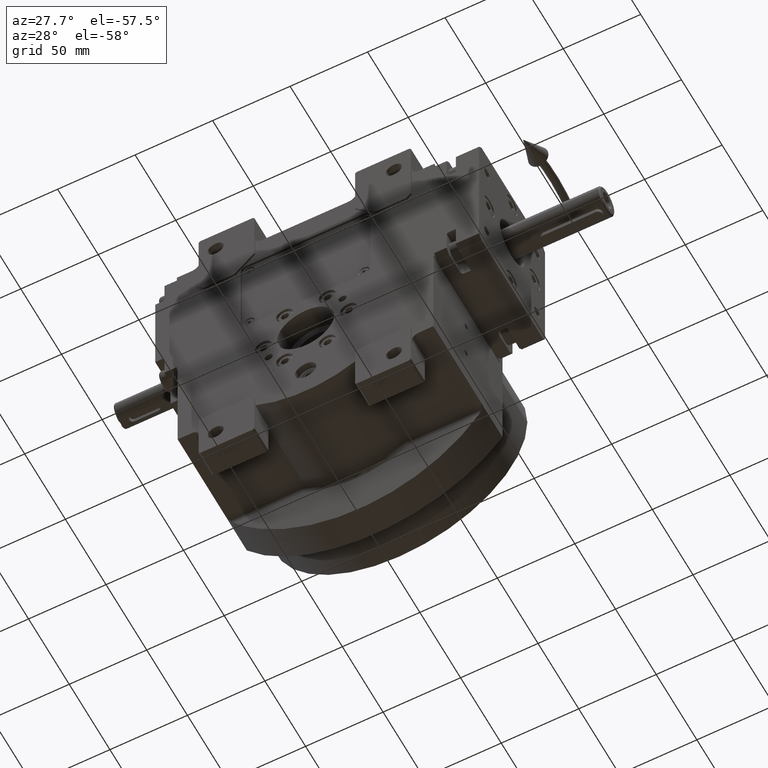
[diagram: clean part render]
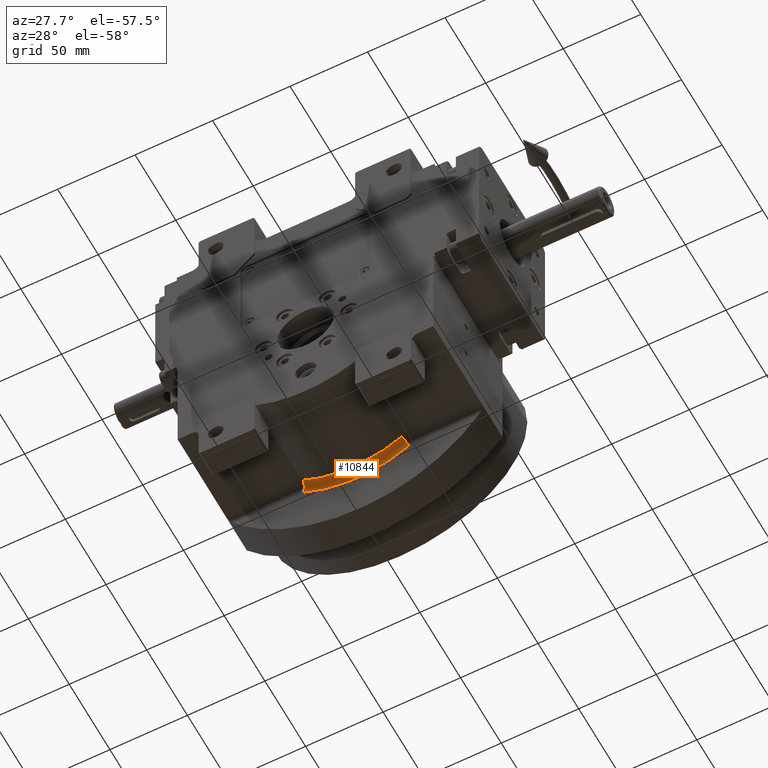
[diagram: same view with one face highlighted and labeled with its STEP entity id]
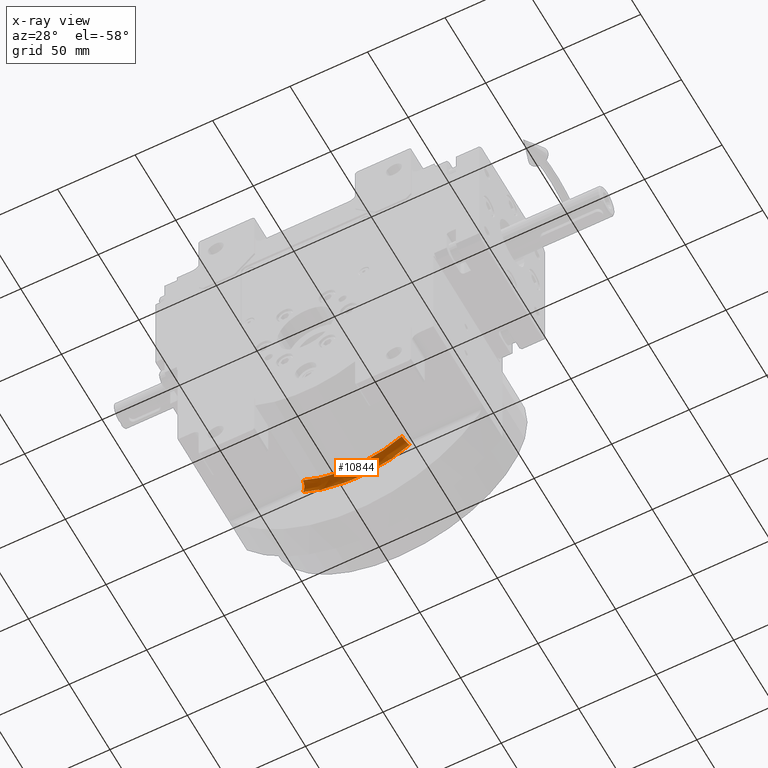
[diagram: x-ray of the same camera — body ghosted, the highlighted face saturated]
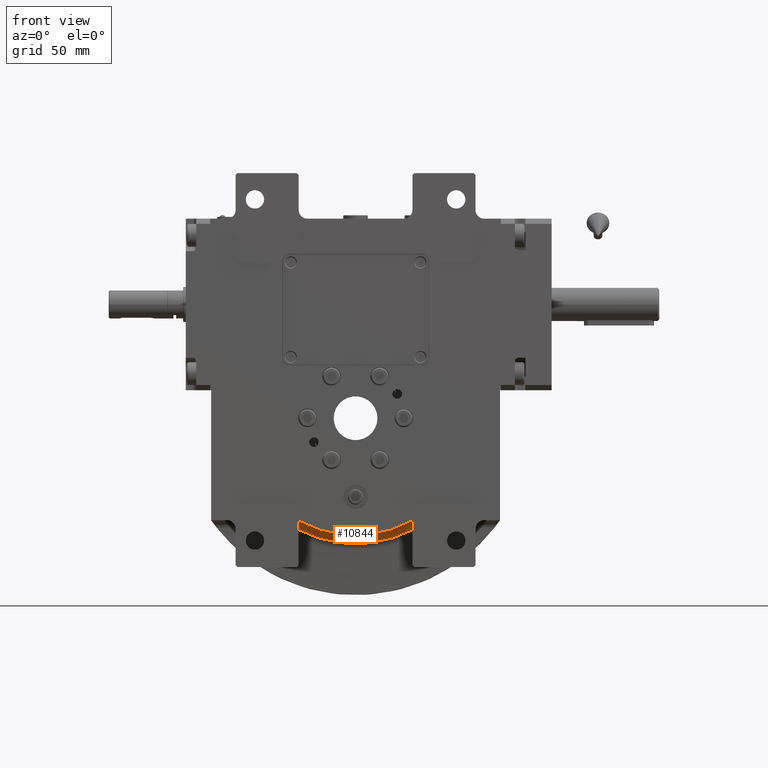
[diagram: same view with one face highlighted and labeled with its STEP entity id]
A machine part, auxiliary view. The second image highlights one B-rep face of the part: STEP entity #10844.
The next image is the same camera in x-ray: the body ghosted, the highlighted face saturated — about 0% of this face is hidden behind the body in this view.
A second angle (front view) of the same face is appended — the face is thin or edge-on in the first view.
In plain terms, the highlighted face is a freeform B-spline surface patch.
Its self-contained STEP definition (entity closure, byte-faithful):
#314 = CARTESIAN_POINT ( 'NONE',  ( -23.47284083894535911, 22.32516390193326572, -67.69614973545274950 ) ) ;
#453 = CARTESIAN_POINT ( 'NONE',  ( 5.312359062531579745, 22.67382314555505118, -71.68461723454409196 ) ) ;
#896 = B_SPLINE_SURFACE_WITH_KNOTS ( 'NONE', 3, 3, ( 
 ( #29865, #42346, #63230, #13002, #69091, #18856, #41259, #59560, #15914, #3799 ),
 ( #20303, #71256, #70891, #9332, #48554, #3447, #32050, #54062, #43428, #26162 ),
 ( #54421, #14823, #37198, #70536, #48197, #16280, #44147, #32417, #66490, #43057 ),
 ( #43785, #55133, #21743, #31693, #26520, #20657, #4883, #8961, #65755, #21032 ),
 ( #65398, #4165, #15197, #37561, #42696, #65024, #59190, #31330, #54779, #53707 ),
 ( #25813, #66117, #27231, #59913, #9690, #48912, #15554, #49627, #37925, #60277 ),
 ( #10056, #71979, #4524, #26881, #49272, #71617, #21389, #38290, #60647, #10415 ),
 ( #32772, #51444, #45937, #67565, #453, #67194, #11841, #22455, #16620, #1193 ) ),
 .UNSPECIFIED., .F., .F., .F.,
 ( 4, 2, 2, 4 ),
 ( 4, 1, 1, 1, 1, 1, 1, 4 ),
 ( -5.349090900439799999E-08, 0.4980493630235890423, 0.9960987795380870091, 1.494148196052583977 ),
 ( 0.01506064934118959975, 0.1415550613721850148, 0.2844104620619999912, 0.4280550938335154765, 0.5719436702722410226, 0.7155885140798790012, 0.8584443337168500276, 0.9843486904440090779 ),
 .UNSPECIFIED. ) ;
#1193 = CARTESIAN_POINT ( 'NONE',  ( -34.37448426115155087, 21.89931358665204897, -62.82870481713079158 ) ) ;
#2100 = CARTESIAN_POINT ( 'NONE',  ( 34.37448425976209876, 21.89931667216864852, -62.82870454466170429 ) ) ;
#2221 = CARTESIAN_POINT ( 'NONE',  ( -34.37448426114839606, 21.89931762037159757, -62.82870446426660749 ) ) ;
#2270 = CARTESIAN_POINT ( 'NONE',  ( 31.98743443817719623, 16.91834202203235193, -58.87106939620260704 ) ) ;
#3447 = CARTESIAN_POINT ( 'NONE',  ( -4.985606449715559663, 18.52258407054160116, -67.05950363468579667 ) ) ;
#3799 = CARTESIAN_POINT ( 'NONE',  ( -31.98734872618995340, 16.91834067345600090, -58.87108237431030489 ) ) ;
#4061 = CARTESIAN_POINT ( 'NONE',  ( 33.43345245199208904, 21.34838968287522221, -61.14495112640866381 ) ) ;
#4165 = CARTESIAN_POINT ( 'NONE',  ( 30.26533976592959974, 20.78888421055715341, -61.61440901042910667 ) ) ;
#4524 = CARTESIAN_POINT ( 'NONE',  ( 25.31111222606615030, 22.21174957585860099, -66.35048536335919778 ) ) ;
#4883 = CARTESIAN_POINT ( 'NONE',  ( -15.05407910445714847, 20.67200015654930212, -66.57285659245719955 ) ) ;
#5097 = CARTESIAN_POINT ( 'NONE',  ( 29.04086476617816714, 22.13437532320985923, -65.51542630187469740 ) ) ;
#5201 = VERTEX_POINT ( 'NONE', #53385 ) ;
#5519 = CARTESIAN_POINT ( 'NONE',  ( 34.22504648665845650, 21.87552267231701464, -62.55672696553510548 ) ) ;
#7492 = EDGE_LOOP ( 'NONE', ( #69882, #39685, #20431, #30978 ) ) ;
#8153 = CARTESIAN_POINT ( 'NONE',  ( 32.02311471396220810, 17.52935285823654965, -58.88333062413673957 ) ) ;
#8961 = CARTESIAN_POINT ( 'NONE',  ( -24.29570833834564780, 20.41175221617285018, -63.75167992997710087 ) ) ;
#9332 = CARTESIAN_POINT ( 'NONE',  ( 14.74899353304840055, 18.38600836025720042, -65.60516387452921094 ) ) ;
#9602 = CARTESIAN_POINT ( 'NONE',  ( 33.73119429049442175, 21.61395435852485747, -61.66965452720889118 ) ) ;
#9690 = CARTESIAN_POINT ( 'NONE',  ( 5.189664148516230924, 22.33884502181484777, -70.04835568725430051 ) ) ;
#10056 = CARTESIAN_POINT ( 'NONE',  ( 33.97495329477499837, 21.83547761356124894, -62.09897339379189418 ) ) ;
#10415 = CARTESIAN_POINT ( 'NONE',  ( -33.97495223888379456, 21.83547720417900351, -62.09897148611660356 ) ) ;
#10844 = ADVANCED_FACE ( 'NONE', ( #53334 ), #896, .F. ) ;
#11036 = CARTESIAN_POINT ( 'NONE',  ( 32.69782428689194376, 20.20639863448462492, -59.89099290944819387 ) ) ;
#11434 = CARTESIAN_POINT ( 'NONE',  ( -31.98743979880390498, 16.91834305889650025, -58.87107689861610282 ) ) ;
#11841 = CARTESIAN_POINT ( 'NONE',  ( -15.88574857046580036, 22.53542943301765078, -70.10167552148800496 ) ) ;
#13002 = CARTESIAN_POINT ( 'NONE',  ( 14.73316211460674019, 17.55174771232135100, -65.60818881742689257 ) ) ;
#13231 = CARTESIAN_POINT ( 'NONE',  ( -32.58211291903631945, 20.03721089980311731, -59.69284975760209733 ) ) ;
#14734 = CARTESIAN_POINT ( 'NONE',  ( 32.16378153835762532, 18.48003092852795604, -59.05913719526966332 ) ) ;
#14823 = CARTESIAN_POINT ( 'NONE',  ( 29.58978951225625309, 18.70273482888475058, -60.41468680097980126 ) ) ;
#15197 = CARTESIAN_POINT ( 'NONE',  ( 24.49311927717645077, 21.03408714449059858, -64.29591374703228723 ) ) ;
#15554 = CARTESIAN_POINT ( 'NONE',  ( -15.51894356669414954, 22.20050738530104795, -68.50238787699559850 ) ) ;
#15752 = CARTESIAN_POINT ( 'NONE',  ( -14.83574960765554707, 22.53394690383062127, -70.08255036706712815 ) ) ;
#15815 = CARTESIAN_POINT ( 'NONE',  ( 32.74046267663956655, 20.29774043094684899, -59.96149064735983814 ) ) ;
#15914 = CARTESIAN_POINT ( 'NONE',  ( -29.45257529162520171, 17.04781258493639839, -60.24818429381119955 ) ) ;
#16280 = CARTESIAN_POINT ( 'NONE',  ( -5.006512162622009932, 19.34373233567044892, -67.26863427106378879 ) ) ;
#16620 = CARTESIAN_POINT ( 'NONE',  ( -31.65484861374630299, 22.02945599755280170, -64.31643460213680896 ) ) ;
#16843 = CARTESIAN_POINT ( 'NONE',  ( 20.63116238637816835, 22.40509573647655372, -68.60977478493825288 ) ) ;
#18779 = CARTESIAN_POINT ( 'NONE',  ( 32.21505596508978897, 18.72422514810597960, -59.13217146334259411 ) ) ;
#18856 = CARTESIAN_POINT ( 'NONE',  ( -4.980135469638319989, 17.68818488111210030, -67.05937529392119245 ) ) ;
#19873 = CARTESIAN_POINT ( 'NONE',  ( 32.10350489515772665, 18.14000914207347748, -58.97787707114111555 ) ) ;
#20303 = CARTESIAN_POINT ( 'NONE',  ( 32.01794642272439262, 17.75200676098285157, -58.85445954576479721 ) ) ;
#20363 = B_SPLINE_CURVE_WITH_KNOTS ( 'NONE', 3,
 ( #43383, #37880, #60230, #47424, #60590, #61304, #56522, #66073, #33086, #11434 ),
 .UNSPECIFIED., .F., .F.,
 ( 4, 1, 1, 1, 1, 1, 1, 4 ),
 ( 0.000000000000000000, 0.1305023962609451471, 0.2778841802425977558, 0.4260802021475848522, 0.5745278981235040217, 0.7227241387829929087, 0.8701063549861712820, 1.000000000000000000 ),
 .UNSPECIFIED. ) ;
#20431 = ORIENTED_EDGE ( 'NONE', *, *, #44861, .F. ) ;
#20657 = CARTESIAN_POINT ( 'NONE',  ( -5.075381098711249983, 20.80979854058070089, -68.06676717787489395 ) ) ;
#21032 = CARTESIAN_POINT ( 'NONE',  ( -32.58211292965309980, 20.03721089926845167, -59.69284975180789843 ) ) ;
#21243 = CARTESIAN_POINT ( 'NONE',  ( -11.90248989745663444, 22.58241322724574474, -70.63652297862456919 ) ) ;
#21299 = CARTESIAN_POINT ( 'NONE',  ( 33.55919131906695441, 21.47314760397791389, -61.36548467847053701 ) ) ;
#21389 = CARTESIAN_POINT ( 'NONE',  ( -15.70109730716845142, 22.47154757257565194, -69.28735807076829190 ) ) ;
#21656 = CARTESIAN_POINT ( 'NONE',  ( 33.49596927411045044, 21.41148316958645736, -61.25452229406503335 ) ) ;
#21743 = CARTESIAN_POINT ( 'NONE',  ( 24.27018054425809979, 20.41274173681960136, -63.76240717643119638 ) ) ;
#21950 = CARTESIAN_POINT ( 'NONE',  ( -2.989791404646014783, 22.66357855640624308, -71.56424693609983478 ) ) ;
#22008 = CARTESIAN_POINT ( 'NONE',  ( 33.90884330140355729, 21.72980709277304356, -61.98654436986177529 ) ) ;
#22455 = CARTESIAN_POINT ( 'NONE',  ( -25.63569944676440215, 22.27462078963334946, -67.11890327536170275 ) ) ;
#24422 = EDGE_CURVE ( 'NONE', #5201, #31665, #20363, .T. ) ;
#25813 = CARTESIAN_POINT ( 'NONE',  ( 33.58176531939849241, 21.56463036862644600, -61.39902706031460156 ) ) ;
#26162 = CARTESIAN_POINT ( 'NONE',  ( -32.01794543039404317, 17.75200655022460339, -58.85445773622760157 ) ) ;
#26425 = CARTESIAN_POINT ( 'NONE',  ( 33.46693639570202805, 21.38264226011981961, -61.20360356247892497 ) ) ;
#26514 = CARTESIAN_POINT ( 'NONE',  ( -31.98743979880390498, 16.91834305889650025, -58.87107689861610282 ) ) ;
#26520 = CARTESIAN_POINT ( 'NONE',  ( 5.034010421367740129, 20.81008187498295214, -68.06983930150960305 ) ) ;
#26798 = CARTESIAN_POINT ( 'NONE',  ( 33.20812734061839677, 21.08478091162955792, -60.75296467484636764 ) ) ;
#26881 = CARTESIAN_POINT ( 'NONE',  ( 15.65889487797699964, 22.47239232837635114, -69.29690724126749046 ) ) ;
#27231 = CARTESIAN_POINT ( 'NONE',  ( 25.01775090583850059, 21.94079065737765077, -65.60031027760419420 ) ) ;
#27437 = CARTESIAN_POINT ( 'NONE',  ( 31.74721959813282979, 22.02420755821067999, -64.25620298585577927 ) ) ;
#27497 = CARTESIAN_POINT ( 'NONE',  ( 32.48629044923389841, 19.68265260997892696, -59.54728963544215503 ) ) ;
#28169 = CARTESIAN_POINT ( 'NONE',  ( 5.969130634977448224, 22.64734071920593195, -71.37864760761658545 ) ) ;
#29865 = CARTESIAN_POINT ( 'NONE',  ( 31.98734971697150087, 16.91834084366389845, -58.87108418469269822 ) ) ;
#30087 = CARTESIAN_POINT ( 'NONE',  ( -32.14775137455149689, 18.57243314881601393, -59.02158095131412807 ) ) ;
#30978 = ORIENTED_EDGE ( 'NONE', *, *, #24422, .T. ) ;
#31330 = CARTESIAN_POINT ( 'NONE',  ( -24.51887821482065277, 21.03309696621295188, -64.28508042708929793 ) ) ;
#31606 = CARTESIAN_POINT ( 'NONE',  ( 32.21062267453432071, 18.70415746839778848, -59.12576714756355756 ) ) ;
#31665 = VERTEX_POINT ( 'NONE', #26514 ) ;
#31672 = B_SPLINE_CURVE_WITH_KNOTS ( 'NONE', 3,
 ( #2270, #58397, #8153, #52879, #19873, #42263, #14734, #64584, #59473, #31606, #18779, #41170, #35643, #27497, #43345, #55402, #48820, #11036, #59830, #65674, #15815, #37835, #37476, #49189, #54334, #26798, #66391, #71536, #42971, #4061, #26425, #31958, #33391, #21656, #44052, #21299, #54685, #9602, #43696, #38906, #66032, #71166, #22008, #55050, #48461, #49537, #5519, #32690 ),
 .UNSPECIFIED., .F., .F.,
 ( 4, 2, 2, 1, 1, 2, 2, 2, 2, 1, 1, 1, 2, 2, 2, 2, 2, 1, 1, 1, 2, 2, 2, 2, 1, 1, 2, 2, 4 ),
 ( 0.000000000000000000, 0.1249999999999205635, 0.1874999999998815392, 0.2187499999998619438, 0.2343749999998528122, 0.2421874999998485933, 0.2499999999998444022, 0.3749999999997710165, 0.4374999999997347122, 0.4687499999997153388, 0.4843749999997056244, 0.4921874999997002398, 0.4960937499996980748, 0.4999999999996959099, 0.6249999999996843636, 0.6874999999996797007, 0.7187499999996763700, 0.7343749999996745936, 0.7421874999996742606, 0.7460937499996737055, 0.7480468749996734834, 0.7499999999996732614, 0.8124999999997548628, 0.8437499999997970512, 0.8593749999998184785, 0.8671874999998295808, 0.8710937499998353539, 0.8749999999998410161, 1.000000000000000000 ),
 .UNSPECIFIED. ) ;
#31693 = CARTESIAN_POINT ( 'NONE',  ( 15.01361162066794996, 20.67284306709315089, -66.58199389556790493 ) ) ;
#31958 = CARTESIAN_POINT ( 'NONE',  ( 33.48383523637958348, 21.39952481451699740, -61.23323436435543243 ) ) ;
#32050 = CARTESIAN_POINT ( 'NONE',  ( -14.78875358798659789, 18.38516779463245143, -65.59621327763490228 ) ) ;
#32417 = CARTESIAN_POINT ( 'NONE',  ( -23.96890041528294901, 18.94637199954769713, -63.01949236013039268 ) ) ;
#32629 = CARTESIAN_POINT ( 'NONE',  ( 14.83576610642443683, 22.53395076200965974, -70.08259446625528710 ) ) ;
#32690 = CARTESIAN_POINT ( 'NONE',  ( 34.37448425976209876, 21.89931667216864852, -62.82870454466170429 ) ) ;
#32772 = CARTESIAN_POINT ( 'NONE',  ( 34.37448532946400093, 21.89931399913935195, -62.82870674722110493 ) ) ;
#32987 = CARTESIAN_POINT ( 'NONE',  ( 34.37448425976209876, 21.89931667216864852, -62.82870454466170429 ) ) ;
#33086 = CARTESIAN_POINT ( 'NONE',  ( -29.45257542784745652, 17.04781651606748127, -60.24818422784169769 ) ) ;
#33337 = CARTESIAN_POINT ( 'NONE',  ( -34.37448426114839606, 21.89931762037159757, -62.82870446426660749 ) ) ;
#33391 = CARTESIAN_POINT ( 'NONE',  ( 33.49111118290952760, 21.40670698740588307, -61.24599844153117800 ) ) ;
#35594 = CARTESIAN_POINT ( 'NONE',  ( -33.97495222781908808, 21.83547720471467812, -62.09897149216929790 ) ) ;
#35643 = CARTESIAN_POINT ( 'NONE',  ( 32.35433031463118425, 19.28630331395154229, -59.33910833681502339 ) ) ;
#37198 = CARTESIAN_POINT ( 'NONE',  ( 23.94370797182140009, 18.94735996923695254, -63.03005720894730501 ) ) ;
#37476 = CARTESIAN_POINT ( 'NONE',  ( 32.84356451004986610, 20.51291761275329151, -60.13242002078200699 ) ) ;
#37561 = CARTESIAN_POINT ( 'NONE',  ( 15.15200614646964894, 21.29437547240680217, -67.14350210244010952 ) ) ;
#37835 = CARTESIAN_POINT ( 'NONE',  ( 32.74468400485579167, 20.30659213609053992, -59.96848570823783575 ) ) ;
#37880 = CARTESIAN_POINT ( 'NONE',  ( 29.44072205902208239, 17.04842239295195228, -60.25462851536783404 ) ) ;
#37925 = CARTESIAN_POINT ( 'NONE',  ( -30.92465710468345108, 21.69472733084185023, -62.85209919801850020 ) ) ;
#38130 = CARTESIAN_POINT ( 'NONE',  ( -31.74689637493835548, 22.02422287345092755, -64.25637803985283369 ) ) ;
#38290 = CARTESIAN_POINT ( 'NONE',  ( -25.33772548572940053, 22.21075815114509666, -66.33927685919370276 ) ) ;
#38857 = CARTESIAN_POINT ( 'NONE',  ( -29.04105011325574992, 22.13437318037911794, -65.51540180920734713 ) ) ;
#38906 = CARTESIAN_POINT ( 'NONE',  ( 33.82720233730306347, 21.68015116134838749, -61.84060092327543146 ) ) ;
#39216 = CARTESIAN_POINT ( 'NONE',  ( 2.989797780335714528, 22.66357457562292410, -71.56420143553830826 ) ) ;
#39685 = ORIENTED_EDGE ( 'NONE', *, *, #64655, .F. ) ;
#41127 = CARTESIAN_POINT ( 'NONE',  ( -33.58176426494383549, 21.56462997295396988, -61.39902518003657406 ) ) ;
#41170 = CARTESIAN_POINT ( 'NONE',  ( 32.28007184173921473, 19.01449822969751580, -59.22643570895439780 ) ) ;
#41259 = CARTESIAN_POINT ( 'NONE',  ( -14.77288166437734063, 17.55090800214700053, -65.59925740921940474 ) ) ;
#42263 = CARTESIAN_POINT ( 'NONE',  ( 32.14281245953367971, 18.36695712941077119, -59.03041155637551185 ) ) ;
#42346 = CARTESIAN_POINT ( 'NONE',  ( 29.44072192283740108, 17.04841846181794907, -60.25462858127929877 ) ) ;
#42696 = CARTESIAN_POINT ( 'NONE',  ( 5.080498079819370183, 21.43171770608825000, -68.64619728877529781 ) ) ;
#42971 = CARTESIAN_POINT ( 'NONE',  ( 33.40529059927756350, 21.31822588542240382, -61.09572500218396840 ) ) ;
#43057 = CARTESIAN_POINT ( 'NONE',  ( -32.14775138503180330, 18.57243314828215119, -59.02158094560640222 ) ) ;
#43345 = CARTESIAN_POINT ( 'NONE',  ( 32.53370187337065289, 19.81285199359001936, -59.62319584522479943 ) ) ;
#43383 = CARTESIAN_POINT ( 'NONE',  ( 31.98743443817719623, 16.91834202203235193, -58.87106939620260704 ) ) ;
#43428 = CARTESIAN_POINT ( 'NONE',  ( -29.48146737460379896, 17.88159068325219891, -60.23419211705630261 ) ) ;
#43696 = CARTESIAN_POINT ( 'NONE',  ( 33.76859029514489663, 21.64106143382714009, -61.73612088267417874 ) ) ;
#43785 = CARTESIAN_POINT ( 'NONE',  ( 32.58211394110570325, 20.03721122118130182, -59.69285158621150345 ) ) ;
#44052 = CARTESIAN_POINT ( 'NONE',  ( 33.49901502991529156, 21.41446307854819153, -61.25986731557330245 ) ) ;
#44147 = CARTESIAN_POINT ( 'NONE',  ( -14.85041617654067991, 19.20617887655184930, -65.79767106539189570 ) ) ;
#44352 = CARTESIAN_POINT ( 'NONE',  ( -20.63116937147355046, 22.40509959465580891, -68.60981888412888452 ) ) ;
#44861 = EDGE_CURVE ( 'NONE', #5201, #50614, #31672, .T. ) ;
#45937 = CARTESIAN_POINT ( 'NONE',  ( 25.60877324666465071, 22.27561228193904697, -67.13024366902838835 ) ) ;
#46970 = CARTESIAN_POINT ( 'NONE',  ( -31.98743979880390498, 16.91834305889650025, -58.87107689861610282 ) ) ;
#47424 = CARTESIAN_POINT ( 'NONE',  ( 14.73316218924969867, 17.55175164572757396, -65.60818880316627144 ) ) ;
#48197 = CARTESIAN_POINT ( 'NONE',  ( 4.965702433001919935, 19.34401517241849788, -67.27165907835350822 ) ) ;
#48461 = CARTESIAN_POINT ( 'NONE',  ( 33.92535459463461223, 21.73912870223322003, -62.01611895463970825 ) ) ;
#48554 = CARTESIAN_POINT ( 'NONE',  ( 4.944966889311680269, 18.52286662855195232, -67.06251259139111198 ) ) ;
#48820 = CARTESIAN_POINT ( 'NONE',  ( 32.64949430569751598, 20.09837154108942769, -59.81145617187603847 ) ) ;
#48912 = CARTESIAN_POINT ( 'NONE',  ( -5.232313598796380028, 22.33856116847615070, -70.04518290873480169 ) ) ;
#49136 = CARTESIAN_POINT ( 'NONE',  ( 23.47303169947996793, 22.32516175910221179, -67.69612524278177546 ) ) ;
#49189 = CARTESIAN_POINT ( 'NONE',  ( 32.95368136968663464, 20.71200517943965025, -60.31722614015441764 ) ) ;
#49272 = CARTESIAN_POINT ( 'NONE',  ( 5.250608913103330444, 22.60993058936840328, -70.85188868654628891 ) ) ;
#49537 = CARTESIAN_POINT ( 'NONE',  ( 34.07635742203913765, 21.82262469278764527, -62.28672716919844987 ) ) ;
#49627 = CARTESIAN_POINT ( 'NONE',  ( -25.04405692028204911, 21.93979951944659845, -65.58923440282170247 ) ) ;
#50614 = VERTEX_POINT ( 'NONE', #2100 ) ;
#51444 = CARTESIAN_POINT ( 'NONE',  ( 31.64213078674164947, 22.03006558229255418, -64.32339653252410017 ) ) ;
#52879 = CARTESIAN_POINT ( 'NONE',  ( 32.08080791320756475, 17.98764634065216939, -58.94941265465860880 ) ) ;
#53334 = FACE_OUTER_BOUND ( 'NONE', #7492, .T. ) ;
#53385 = CARTESIAN_POINT ( 'NONE',  ( 31.98743443817719623, 16.91834202203235193, -58.87106939620260704 ) ) ;
#53707 = CARTESIAN_POINT ( 'NONE',  ( -32.87977050622575348, 20.65830019420030084, -60.18633505587489907 ) ) ;
#54062 = CARTESIAN_POINT ( 'NONE',  ( -23.87045234341555044, 18.12560795860210305, -62.83233301949760374 ) ) ;
#54334 = CARTESIAN_POINT ( 'NONE',  ( 33.14167064679252661, 20.99373569009000207, -60.63854115864183569 ) ) ;
#54421 = CARTESIAN_POINT ( 'NONE',  ( 32.14775238197429985, 18.57243339894680290, -59.02158275995419956 ) ) ;
#54685 = CARTESIAN_POINT ( 'NONE',  ( 33.62399696553287498, 21.53086136857003652, -61.47963672372196697 ) ) ;
#54779 = CARTESIAN_POINT ( 'NONE',  ( -30.27750872055215225, 20.78827554963325142, -61.60775735980099910 ) ) ;
#55050 = CARTESIAN_POINT ( 'NONE',  ( 33.91934743153302634, 21.73576831729242897, -62.00535665183546286 ) ) ;
#55133 = CARTESIAN_POINT ( 'NONE',  ( 29.99084088730355191, 20.16771084712490136, -61.10706471000440132 ) ) ;
#55402 = CARTESIAN_POINT ( 'NONE',  ( 32.61002891604541531, 20.00390710677695338, -59.74704011465331632 ) ) ;
#55948 = CARTESIAN_POINT ( 'NONE',  ( -34.37448426114839606, 21.89931762037159757, -62.82870446426660749 ) ) ;
#56522 = CARTESIAN_POINT ( 'NONE',  ( -14.77288173921127701, 17.55091193554919471, -65.59925739486833152 ) ) ;
#57963 = CARTESIAN_POINT ( 'NONE',  ( -32.01794541995315058, 17.75200655075800782, -58.85445774190699098 ) ) ;
#58148 = VERTEX_POINT ( 'NONE', #55948 ) ;
#58397 = CARTESIAN_POINT ( 'NONE',  ( 31.99852157932058105, 17.22226205638403229, -58.86505566043709337 ) ) ;
#58699 = CARTESIAN_POINT ( 'NONE',  ( -32.87977049551408726, 20.65830019473531820, -60.18633506172589165 ) ) ;
#59190 = CARTESIAN_POINT ( 'NONE',  ( -15.19284511144029892, 21.29353192454400201, -67.13427375725019886 ) ) ;
#59473 = CARTESIAN_POINT ( 'NONE',  ( 32.20253065353806221, 18.66693435054510886, -59.11412820604594032 ) ) ;
#59560 = CARTESIAN_POINT ( 'NONE',  ( -23.84593569003270019, 17.29159919360714781, -62.84117147466660924 ) ) ;
#59570 = B_SPLINE_CURVE_WITH_KNOTS ( 'NONE', 3,
 ( #32987, #27437, #5097, #49136, #16843, #32629, #71474, #28169, #39216, #21950, #66702, #21243, #15752, #44352, #314, #38857, #38130, #33337 ),
 .UNSPECIFIED., .F., .F.,
 ( 4, 2, 2, 2, 2, 2, 2, 2, 4 ),
 ( 0.000000000000000000, 0.1250000000000000000, 0.2500000000000000000, 0.3750000000000000000, 0.5000000000000000000, 0.6250000000000000000, 0.7500000000000000000, 0.8750000000000000000, 1.000000000000000000 ),
 .UNSPECIFIED. ) ;
#59830 = CARTESIAN_POINT ( 'NONE',  ( 32.72256152614408364, 20.25982518854230108, -59.93185774238567376 ) ) ;
#59913 = CARTESIAN_POINT ( 'NONE',  ( 15.47723018580565046, 22.20135186317695286, -68.51182380416469186 ) ) ;
#60230 = CARTESIAN_POINT ( 'NONE',  ( 23.82086331600217122, 17.29258934410870197, -62.85166114526040104 ) ) ;
#60277 = CARTESIAN_POINT ( 'NONE',  ( -33.58176427588125534, 21.56462997241844803, -61.39902517405529636 ) ) ;
#60590 = CARTESIAN_POINT ( 'NONE',  ( 4.939540285032240519, 17.68847108994751594, -67.06237765336878454 ) ) ;
#60647 = CARTESIAN_POINT ( 'NONE',  ( -31.28692157794700535, 21.96561102192774939, -63.56940012490900926 ) ) ;
#61304 = CARTESIAN_POINT ( 'NONE',  ( -4.980135495433235526, 17.68818881517152874, -67.05937529452785384 ) ) ;
#62674 = EDGE_CURVE ( 'NONE', #31665, #58148, #64094, .T. ) ;
#63230 = CARTESIAN_POINT ( 'NONE',  ( 23.82086320050884964, 17.29258541188589859, -62.85166118683000036 ) ) ;
#64094 = B_SPLINE_CURVE_WITH_KNOTS ( 'NONE', 3,
 ( #46970, #57963, #30087, #13231, #58699, #41127, #35594, #2221 ),
 .UNSPECIFIED., .F., .F.,
 ( 4, 2, 2, 4 ),
 ( 0.000000000000000000, 0.3333333333333335924, 0.6666666666666671848, 1.000000000000000000 ),
 .UNSPECIFIED. ) ;
#64584 = CARTESIAN_POINT ( 'NONE',  ( 32.19055830556653319, 18.61102054775242465, -59.09698003137811639 ) ) ;
#64655 = EDGE_CURVE ( 'NONE', #50614, #58148, #59570, .T. ) ;
#65024 = CARTESIAN_POINT ( 'NONE',  ( -5.122250627365549924, 21.43143416067259821, -68.64309445080189676 ) ) ;
#65398 = CARTESIAN_POINT ( 'NONE',  ( 32.87977152734590192, 20.65830054632354873, -60.18633690520509560 ) ) ;
#65674 = CARTESIAN_POINT ( 'NONE',  ( 32.73328586040518928, 20.28259200613085511, -59.94960616786701735 ) ) ;
#65755 = CARTESIAN_POINT ( 'NONE',  ( -30.00290205058615101, 20.16710264854260259, -61.10047760549640117 ) ) ;
#66032 = CARTESIAN_POINT ( 'NONE',  ( 33.85713766137644853, 21.69930227409577128, -61.89403531663299418 ) ) ;
#66073 = CARTESIAN_POINT ( 'NONE',  ( -23.84593580562536630, 17.29160312582579095, -62.84117143299615549 ) ) ;
#66117 = CARTESIAN_POINT ( 'NONE',  ( 30.91223167887569900, 21.69533666644165137, -62.85889895672319483 ) ) ;
#66391 = CARTESIAN_POINT ( 'NONE',  ( 33.31357684144703057, 21.21470799708574617, -60.93584403762083213 ) ) ;
#66490 = CARTESIAN_POINT ( 'NONE',  ( -29.60169563607699672, 18.70212772068944673, -60.40819800351219726 ) ) ;
#66702 = CARTESIAN_POINT ( 'NONE',  ( -5.969118748666172536, 22.64733676919941985, -71.37860245883551613 ) ) ;
#67194 = CARTESIAN_POINT ( 'NONE',  ( -5.356016771387229980, 22.67353917850849854, -71.68136855480990732 ) ) ;
#67565 = CARTESIAN_POINT ( 'NONE',  ( 15.84304983925120069, 22.53627425432280162, -70.11133706324248749 ) ) ;
#69091 = CARTESIAN_POINT ( 'NONE',  ( 4.939540259446429715, 17.68846715588675167, -67.06237765273100138 ) ) ;
#69882 = ORIENTED_EDGE ( 'NONE', *, *, #62674, .T. ) ;
#70536 = CARTESIAN_POINT ( 'NONE',  ( 14.81049246554406018, 19.20702028404180339, -65.80666838281179309 ) ) ;
#70891 = CARTESIAN_POINT ( 'NONE',  ( 23.84535878138364851, 18.12659505959519990, -62.84284412317220614 ) ) ;
#71166 = CARTESIAN_POINT ( 'NONE',  ( 33.89316598205211761, 21.72079560458065117, -61.95847620662187438 ) ) ;
#71256 = CARTESIAN_POINT ( 'NONE',  ( 29.46960603675275081, 17.88219718071835018, -60.24064871479900773 ) ) ;
#71474 = CARTESIAN_POINT ( 'NONE',  ( 11.90248994995745058, 22.58240927723912250, -70.63647782984223511 ) ) ;
#71536 = CARTESIAN_POINT ( 'NONE',  ( 33.34968649446624056, 21.25690745240459378, -60.99867444786077186 ) ) ;
#71617 = CARTESIAN_POINT ( 'NONE',  ( -5.293759152372389032, 22.60964664401005209, -70.84867779253190179 ) ) ;
#71979 = CARTESIAN_POINT ( 'NONE',  ( 31.27435154526424910, 21.96622055914739846, -63.57628109349388978 ) ) ;